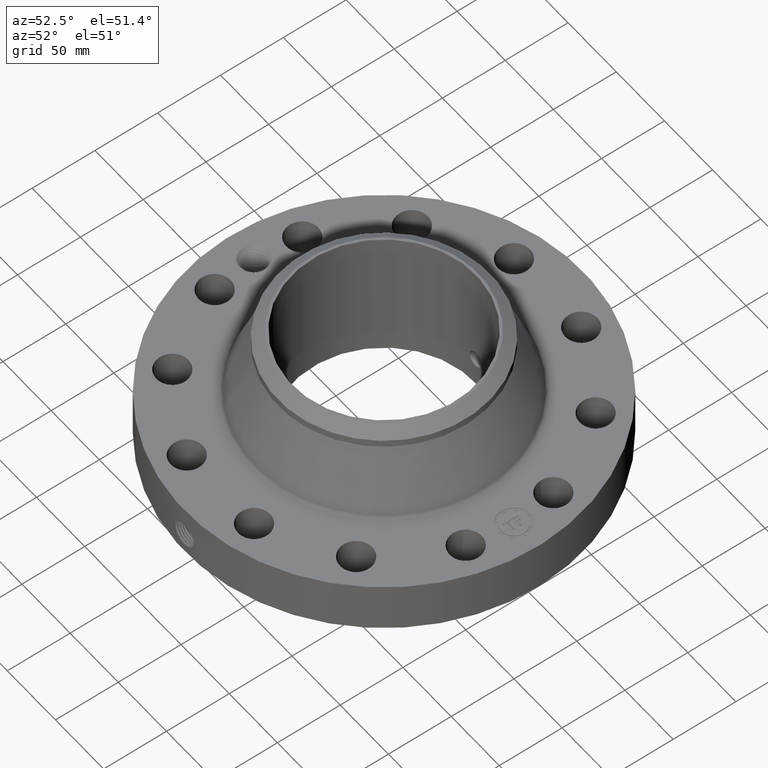
[diagram: clean part render]
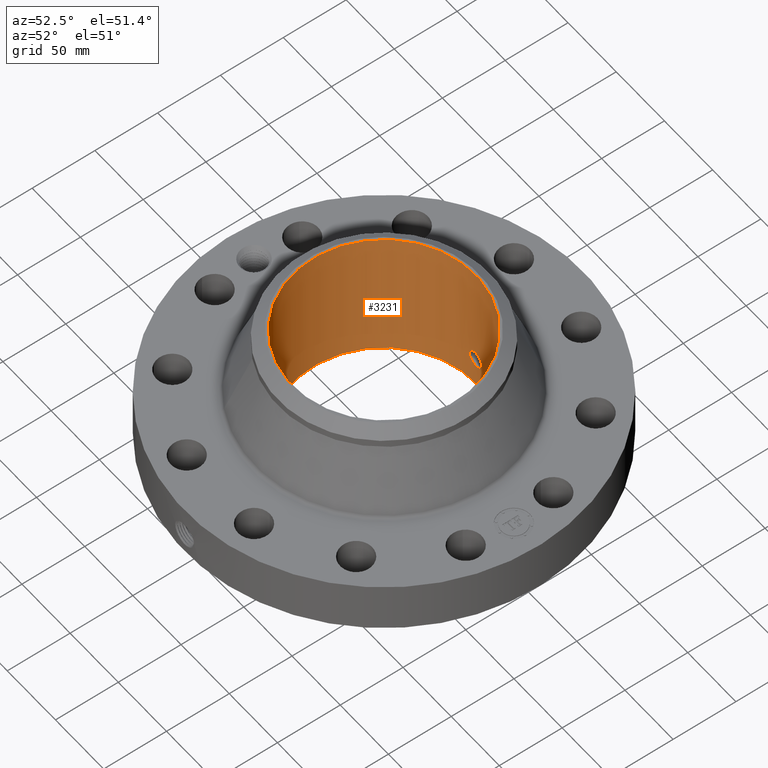
[diagram: same view with one face highlighted and labeled with its STEP entity id]
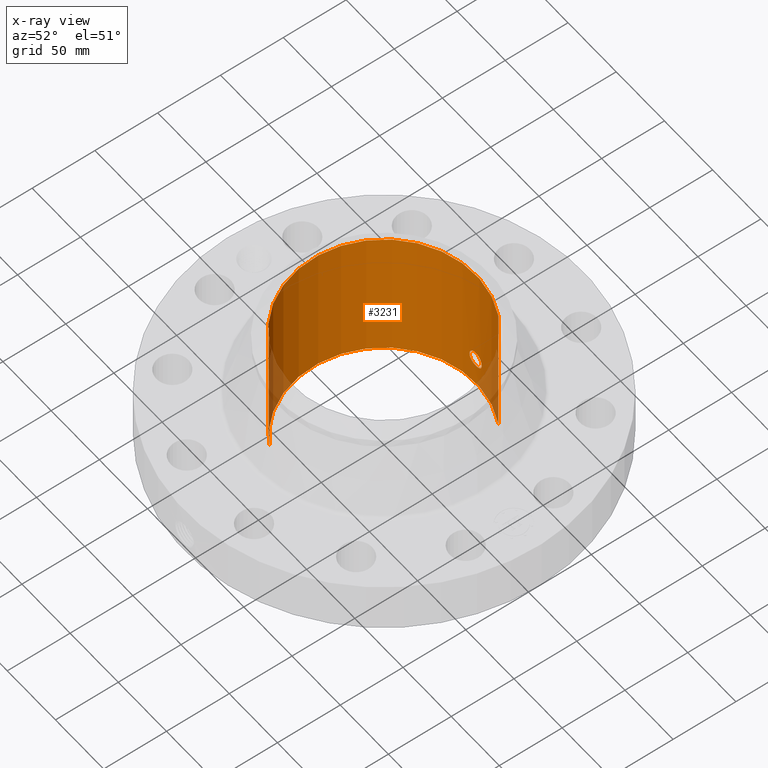
[diagram: x-ray of the same camera — body ghosted, the highlighted face saturated]
A machine part, auxiliary view. The second image highlights one B-rep face of the part: STEP entity #3231.
The next image is the same camera in x-ray: the body ghosted, the highlighted face saturated — about 6% of this face is hidden behind the body in this view.
In plain terms, the highlighted cylindrical surface (partial cylindrical patch) has radius 73.1647 mm, axis along (0, 0, -1).
Its self-contained STEP definition (entity closure, byte-faithful):
#2422=AXIS2_PLACEMENT_3D('Circle Axis2P3D',#2420,#2421,$) ;
#3108=AXIS2_PLACEMENT_3D('Cylinder Axis2P3D',#3105,#3106,#3107) ;
#3180=AXIS2_PLACEMENT_3D('Circle Axis2P3D',#3178,#3179,$) ;
#2415=CARTESIAN_POINT('Vertex',(1.38098526395,2.52787656954,-4.75560098737E-015)) ;
#2417=CARTESIAN_POINT('Vertex',(-1.38098526395,-2.52787656954,-4.75560098737E-015)) ;
#2420=CARTESIAN_POINT('Axis2P3D Location',(0.,0.,0.)) ;
#3105=CARTESIAN_POINT('Axis2P3D Location',(0.,0.,2.15500000001)) ;
#3114=CARTESIAN_POINT('Vertex',(1.38098526395,2.52787656954,4.31000000002)) ;
#3116=CARTESIAN_POINT('Vertex',(-1.38098526395,-2.52787656954,4.31000000002)) ;
#3119=CARTESIAN_POINT('Line Origine',(1.38098526395,2.52787656954,2.15500000001)) ;
#3124=CARTESIAN_POINT('Line Origine',(-1.38098526395,-2.52787656954,2.15500000001)) ;
#3178=CARTESIAN_POINT('Axis2P3D Location',(0.,0.,4.31000000002)) ;
#3190=CARTESIAN_POINT('Control Point',(0.219395640473,2.87213262281,1.05985638466)) ;
#3191=CARTESIAN_POINT('Control Point',(0.206922351995,2.87308542878,1.08268858606)) ;
#3192=CARTESIAN_POINT('Control Point',(0.191481712057,2.87419679655,1.10389307758)) ;
#3193=CARTESIAN_POINT('Control Point',(0.173354194299,2.87538062812,1.12296014846)) ;
#3194=CARTESIAN_POINT('Control Point',(0.112199588944,2.87880172466,1.17240469315)) ;
#3195=CARTESIAN_POINT('Control Point',(0.0350911619242,2.88102435561,1.19594771471)) ;
#3196=CARTESIAN_POINT('Control Point',(-0.0194446568686,2.88119275664,1.19761224592)) ;
#3197=CARTESIAN_POINT('Control Point',(-0.123995866137,2.87875349424,1.17252930703)) ;
#3198=CARTESIAN_POINT('Control Point',(-0.203020087957,2.87369160983,1.09975234339)) ;
#3199=CARTESIAN_POINT('Control Point',(-0.232033505237,2.87119266303,1.05361428801)) ;
#3200=CARTESIAN_POINT('Control Point',(-0.255810454025,2.86912592234,0.975428323812)) ;
#3201=CARTESIAN_POINT('Control Point',(-0.248335741927,2.86977503044,0.895964558553)) ;
#3202=CARTESIAN_POINT('Control Point',(-0.24210070173,2.87032479534,0.869317071045)) ;
#3203=CARTESIAN_POINT('Control Point',(-0.232348019491,2.87114322021,0.843852786111)) ;
#3204=CARTESIAN_POINT('Control Point',(-0.219395640473,2.87213262281,0.820143615352)) ;
#3205=CARTESIAN_POINT('Vertex',(0.219395640473,2.87213262281,1.05985638466)) ;
#3207=CARTESIAN_POINT('Vertex',(-0.219395640473,2.87213262281,0.820143615352)) ;
#3211=CARTESIAN_POINT('Control Point',(-0.219395640473,2.87213262281,0.820143615352)) ;
#3212=CARTESIAN_POINT('Control Point',(-0.206922351995,2.87308542878,0.797311413943)) ;
#3213=CARTESIAN_POINT('Control Point',(-0.191481712057,2.87419679655,0.776106922431)) ;
#3214=CARTESIAN_POINT('Control Point',(-0.1733541943,2.87538062812,0.757039851547)) ;
#3215=CARTESIAN_POINT('Control Point',(-0.112199588939,2.87880172466,0.707595306848)) ;
#3216=CARTESIAN_POINT('Control Point',(-0.0350911619075,2.88102435561,0.684052285294)) ;
#3217=CARTESIAN_POINT('Control Point',(0.0194446568519,2.88119275664,0.682387754079)) ;
#3218=CARTESIAN_POINT('Control Point',(0.123995866101,2.87875349424,0.707470692963)) ;
#3219=CARTESIAN_POINT('Control Point',(0.203020087913,2.87369160983,0.780247656578)) ;
#3220=CARTESIAN_POINT('Control Point',(0.232033505254,2.87119266303,0.826385712051)) ;
#3221=CARTESIAN_POINT('Control Point',(0.255810454029,2.86912592234,0.90457167625)) ;
#3222=CARTESIAN_POINT('Control Point',(0.248335741922,2.86977503044,0.984035441504)) ;
#3223=CARTESIAN_POINT('Control Point',(0.242100701748,2.87032479534,1.01068292892)) ;
#3224=CARTESIAN_POINT('Control Point',(0.232348019503,2.87114322021,1.03614721387)) ;
#3225=CARTESIAN_POINT('Control Point',(0.219395640473,2.87213262281,1.05985638466)) ;
#2421=DIRECTION('Axis2P3D Direction',(0.,0.,-0.0393700787402)) ;
#3106=DIRECTION('Axis2P3D Direction',(0.,0.,-0.0393700787402)) ;
#3107=DIRECTION('Axis2P3D XDirection',(-0.0188750212049,-0.0345504945626,0.)) ;
#3120=DIRECTION('Vector Direction',(0.,0.,-0.0393700787402)) ;
#3125=DIRECTION('Vector Direction',(0.,0.,-0.0393700787402)) ;
#3179=DIRECTION('Axis2P3D Direction',(0.,0.,-0.0393700787402)) ;
#3121=VECTOR('Line Direction',#3120,0.0393700787402) ;
#3126=VECTOR('Line Direction',#3125,0.0393700787402) ;
#3184=ORIENTED_EDGE('',*,*,#3182,.F.) ;
#3185=ORIENTED_EDGE('',*,*,#3128,.T.) ;
#3186=ORIENTED_EDGE('',*,*,#2424,.T.) ;
#3187=ORIENTED_EDGE('',*,*,#3123,.F.) ;
#3228=ORIENTED_EDGE('',*,*,#3209,.F.) ;
#3229=ORIENTED_EDGE('',*,*,#3226,.F.) ;
#3230=FACE_BOUND('',#3227,.T.) ;
#3231=ADVANCED_FACE('PartBody',(#3188,#3230),#3109,.F.) ;
#3189=B_SPLINE_CURVE_WITH_KNOTS('',5,(#3190,#3191,#3192,#3193,#3194,#3195,#3196,#3197,#3198,#3199,#3200,#3201,#3202,#3203,#3204),.UNSPECIFIED.,.F.,.U.,(6,3,3,3,6),(0.,4.67594679136,14.0198370771,23.3697183305,28.2252650626),.UNSPECIFIED.) ;
#3210=B_SPLINE_CURVE_WITH_KNOTS('',5,(#3211,#3212,#3213,#3214,#3215,#3216,#3217,#3218,#3219,#3220,#3221,#3222,#3223,#3224,#3225),.UNSPECIFIED.,.F.,.U.,(6,3,3,3,6),(0.,4.67594679147,14.0198370787,23.3697183269,28.2252650633),.UNSPECIFIED.) ;
#2423=CIRCLE('generated circle',#2422,2.88050000001) ;
#3181=CIRCLE('generated circle',#3180,2.88050000001) ;
#3109=CYLINDRICAL_SURFACE('generated cylinder',#3108,2.88050000001) ;
#2424=EDGE_CURVE('',#2418,#2416,#2423,.T.) ;
#3123=EDGE_CURVE('',#3115,#2416,#3122,.T.) ;
#3128=EDGE_CURVE('',#3117,#2418,#3127,.T.) ;
#3182=EDGE_CURVE('',#3117,#3115,#3181,.T.) ;
#3209=EDGE_CURVE('',#3206,#3208,#3189,.T.) ;
#3226=EDGE_CURVE('',#3208,#3206,#3210,.T.) ;
#3183=EDGE_LOOP('',(#3184,#3185,#3186,#3187)) ;
#3227=EDGE_LOOP('',(#3228,#3229)) ;
#3188=FACE_OUTER_BOUND('',#3183,.T.) ;
#3122=LINE('Line',#3119,#3121) ;
#3127=LINE('Line',#3124,#3126) ;
#2416=VERTEX_POINT('',#2415) ;
#2418=VERTEX_POINT('',#2417) ;
#3115=VERTEX_POINT('',#3114) ;
#3117=VERTEX_POINT('',#3116) ;
#3206=VERTEX_POINT('',#3205) ;
#3208=VERTEX_POINT('',#3207) ;